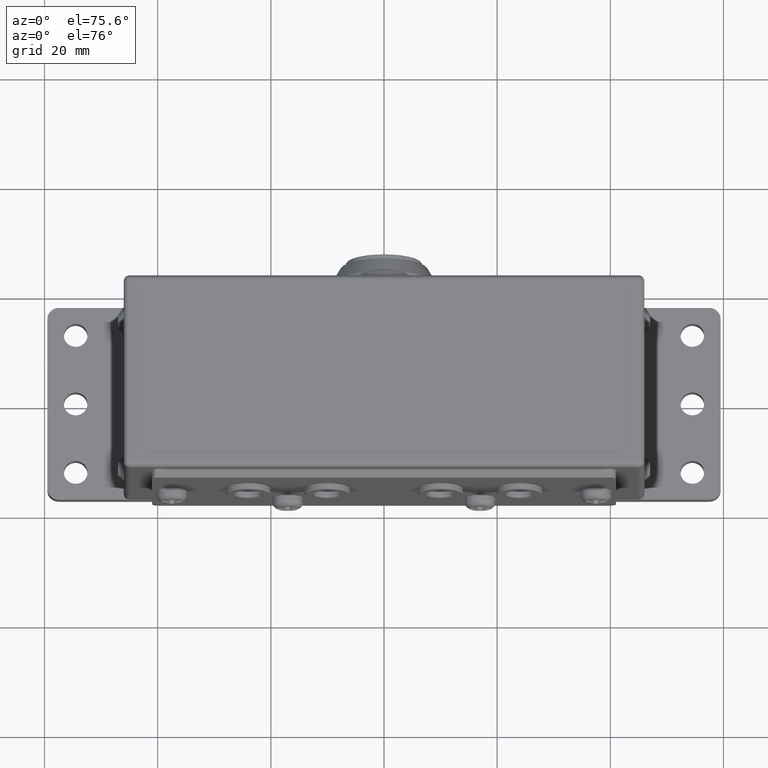
[diagram: clean part render]
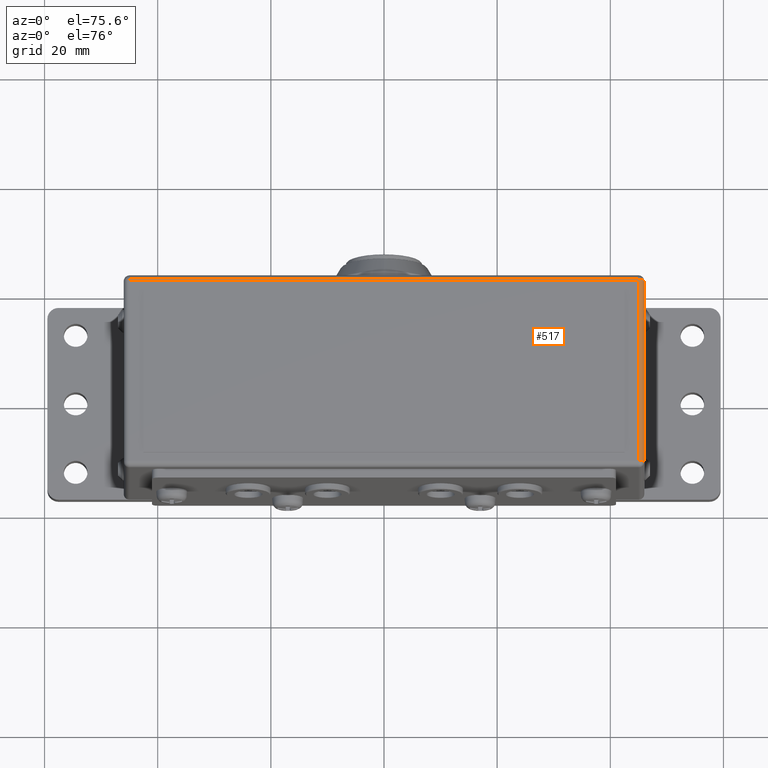
[diagram: same view with one face highlighted and labeled with its STEP entity id]
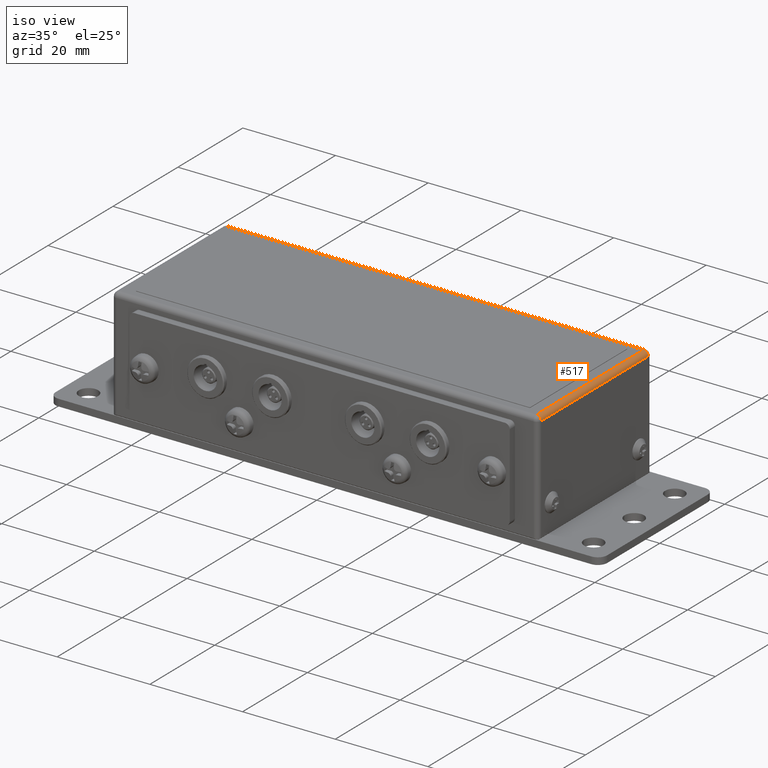
[diagram: same view with one face highlighted and labeled with its STEP entity id]
A machine part, auxiliary view. The second image highlights one B-rep face of the part: STEP entity #517.
A second angle (iso view) of the same face is appended — the face is thin or edge-on in the first view.
In plain terms, the highlighted cylindrical surface (edge-blend (fillet) strip) has radius 1 mm, axis along (-0, 1, -0).
Its self-contained STEP definition (entity closure, byte-faithful):
#517 = ADVANCED_FACE( '', ( #1300 ), #1301, .T. );
#1300 = FACE_OUTER_BOUND( '', #2421, .T. );
#1301 = CYLINDRICAL_SURFACE( '', #2422, 1.00000000000000 );
#2421 = EDGE_LOOP( '', ( #3940, #3941, #3942, #3943 ) );
#2422 = AXIS2_PLACEMENT_3D( '', #3944, #3945, #3946 );
#3940 = ORIENTED_EDGE( '', *, *, #6151, .F. );
#3941 = ORIENTED_EDGE( '', *, *, #6281, .T. );
#3942 = ORIENTED_EDGE( '', *, *, #6282, .F. );
#3943 = ORIENTED_EDGE( '', *, *, #6210, .T. );
#3944 = CARTESIAN_POINT( '', ( 44.9999999999999, 17.5000000000000, -1.00000000000000 ) );
#3945 = DIRECTION( '', ( -0.000000000000000, 1.00000000000000, -0.000000000000000 ) );
#3946 = DIRECTION( '', ( 0.000000000000000, 0.000000000000000, -1.00000000000000 ) );
#6151 = EDGE_CURVE( '', #7344, #7346, #7347, .T. );
#6210 = EDGE_CURVE( '', #7281, #7346, #7443, .F. );
#6281 = EDGE_CURVE( '', #7344, #7553, #7554, .T. );
#6282 = EDGE_CURVE( '', #7281, #7553, #7555, .F. );
#7281 = VERTEX_POINT( '', #8879 );
#7344 = VERTEX_POINT( '', #8959 );
#7346 = VERTEX_POINT( '', #8962 );
#7347 = LINE( '', #8963, #8964 );
#7443 = CIRCLE( '', #9089, 1.00000000000000 );
#7553 = VERTEX_POINT( '', #9233 );
#7554 = CIRCLE( '', #9234, 1.00000000000000 );
#7555 = LINE( '', #9235, #9236 );
#8879 = CARTESIAN_POINT( '', ( 44.9999999999999, -16.5000000000000, 0.000000000000000 ) );
#8959 = CARTESIAN_POINT( '', ( 45.9999999999999, 16.5000000000000, -1.00000000000000 ) );
#8962 = CARTESIAN_POINT( '', ( 45.9999999999999, -16.5000000000000, -1.00000000000000 ) );
#8963 = CARTESIAN_POINT( '', ( 45.9999999999999, 17.5000000000000, -1.00000000000000 ) );
#8964 = VECTOR( '', #10688, 1000.00000000000 );
#9089 = AXIS2_PLACEMENT_3D( '', #10763, #10764, #10765 );
#9233 = CARTESIAN_POINT( '', ( 44.9999999999999, 16.5000000000000, 0.000000000000000 ) );
#9234 = AXIS2_PLACEMENT_3D( '', #10858, #10859, #10860 );
#9235 = CARTESIAN_POINT( '', ( 44.9999999999999, 17.5000000000000, 0.000000000000000 ) );
#9236 = VECTOR( '', #10861, 1000.00000000000 );
#10688 = DIRECTION( '', ( 0.000000000000000, -1.00000000000000, 0.000000000000000 ) );
#10763 = CARTESIAN_POINT( '', ( 44.9999999999999, -16.5000000000000, -1.00000000000000 ) );
#10764 = DIRECTION( '', ( 0.000000000000000, -1.00000000000000, 0.000000000000000 ) );
#10765 = DIRECTION( '', ( 0.000000000000000, 0.000000000000000, -1.00000000000000 ) );
#10858 = CARTESIAN_POINT( '', ( 44.9999999999999, 16.5000000000000, -1.00000000000000 ) );
#10859 = DIRECTION( '', ( 0.000000000000000, -1.00000000000000, 0.000000000000000 ) );
#10860 = DIRECTION( '', ( 0.000000000000000, 0.000000000000000, -1.00000000000000 ) );
#10861 = DIRECTION( '', ( 0.000000000000000, -1.00000000000000, 0.000000000000000 ) );